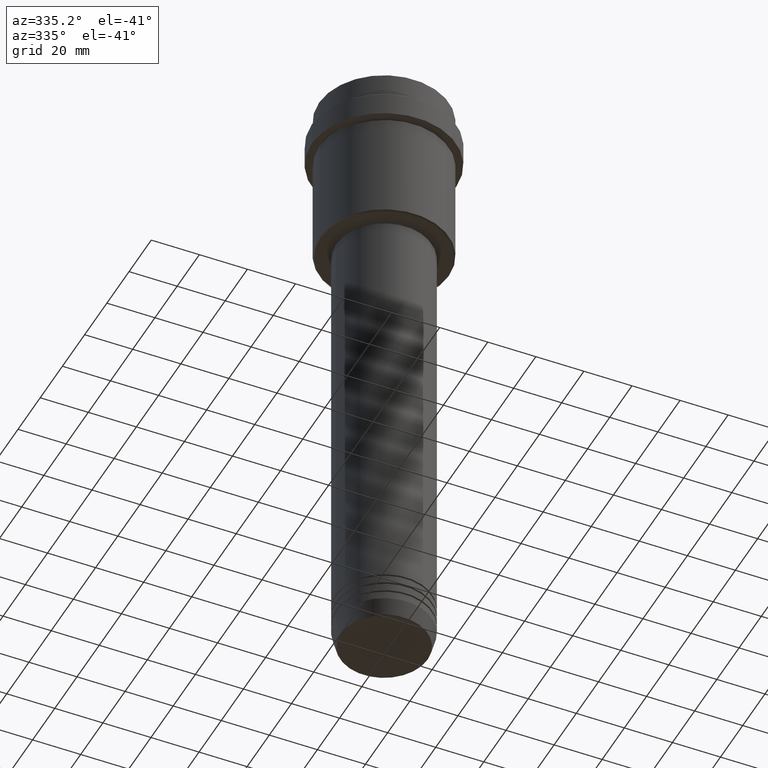
[diagram: clean part render]
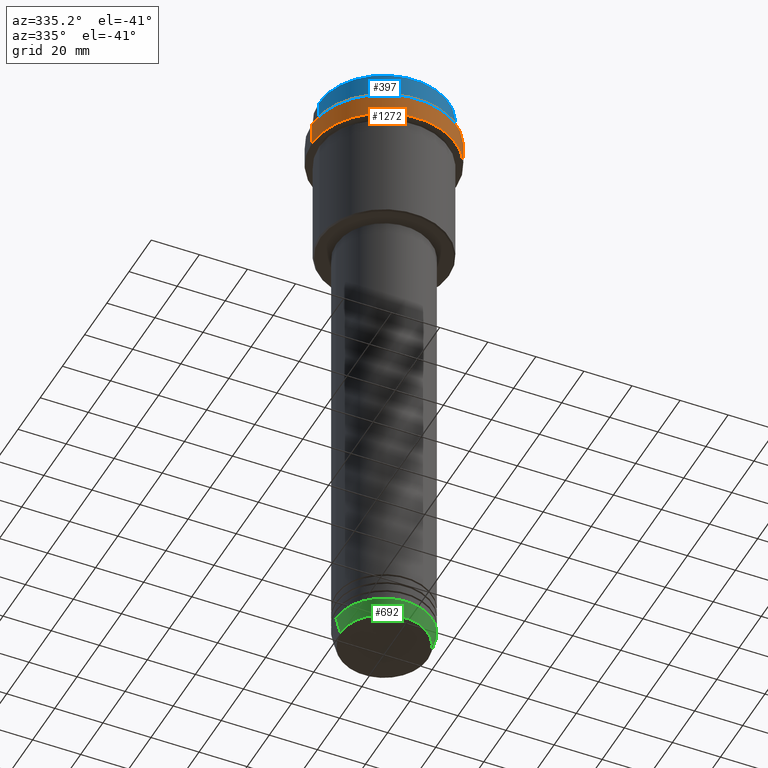
[diagram: same view with three faces highlighted in distinct colors, each labeled with its STEP entity id]
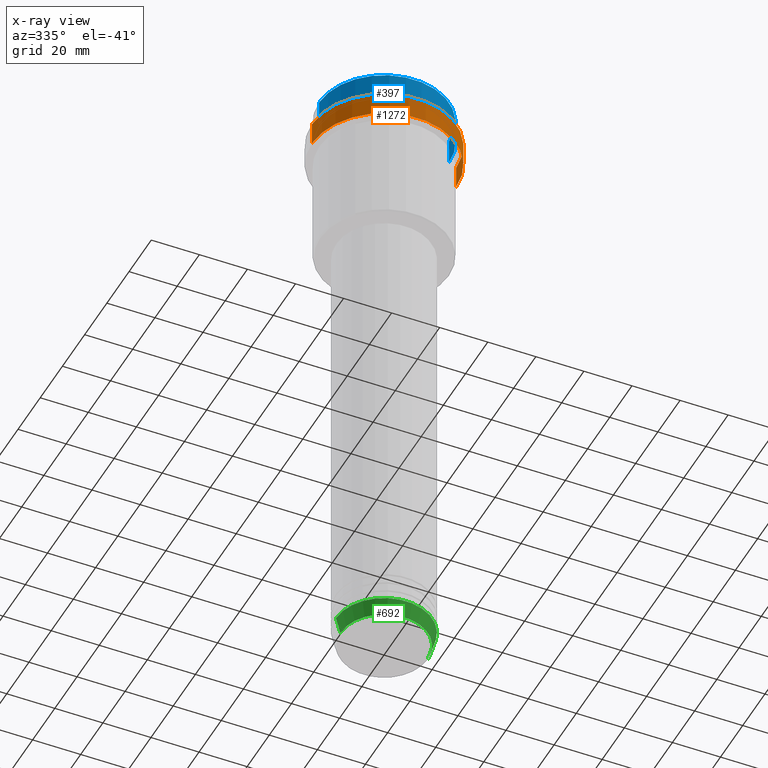
[diagram: x-ray of the same camera — body ghosted, the three highlighted faces saturated]
A machine part, auxiliary view with three faces highlighted in distinct colors.
The next image is the same camera in x-ray (body ghosted, the three faces saturated) — at least one of them is partly hidden behind the body in this view.
Their STEP definitions:

[orange] entity #1272 — the highlighted cylindrical surface (partial cylindrical patch) has radius 30 mm, axis along (-0, -0, 1).
#24 = EDGE_CURVE ( 'NONE', #1242, #1064, #1393, .T. ) ;
#74 = CIRCLE ( 'NONE', #249, 29.99999999999999645 ) ;
#91 = ORIENTED_EDGE ( 'NONE', *, *, #470, .T. ) ;
#108 = CARTESIAN_POINT ( 'NONE',  ( 29.99999999999999645, 0.000000000000000000, -22.00000000000000355 ) ) ;
#210 = AXIS2_PLACEMENT_3D ( 'NONE', #332, #1223, #217 ) ;
#217 = DIRECTION ( 'NONE',  ( 1.000000000000000000, 0.000000000000000000, 0.000000000000000000 ) ) ;
#228 = EDGE_CURVE ( 'NONE', #1242, #1080, #74, .T. ) ;
#249 = AXIS2_PLACEMENT_3D ( 'NONE', #1320, #423, #322 ) ;
#276 = CARTESIAN_POINT ( 'NONE',  ( -30.00000000000000000, 3.673940397442059178E-15, 0.000000000000000000 ) ) ;
#322 = DIRECTION ( 'NONE',  ( 1.000000000000000000, 0.000000000000000000, 0.000000000000000000 ) ) ;
#326 = CYLINDRICAL_SURFACE ( 'NONE', #210, 30.00000000000000000 ) ;
#332 = CARTESIAN_POINT ( 'NONE',  ( 0.000000000000000000, 0.000000000000000000, 0.000000000000000000 ) ) ;
#359 = AXIS2_PLACEMENT_3D ( 'NONE', #590, #933, #853 ) ;
#407 = DIRECTION ( 'NONE',  ( -0.000000000000000000, -0.000000000000000000, 1.000000000000000000 ) ) ;
#409 = VECTOR ( 'NONE', #407, 1000.000000000000000 ) ;
#423 = DIRECTION ( 'NONE',  ( -0.000000000000000000, -0.000000000000000000, 1.000000000000000000 ) ) ;
#470 = EDGE_CURVE ( 'NONE', #1373, #1064, #654, .T. ) ;
#590 = CARTESIAN_POINT ( 'NONE',  ( 0.000000000000000000, 0.000000000000000000, -12.50000000000000888 ) ) ;
#633 = LINE ( 'NONE', #961, #409 ) ;
#654 = CIRCLE ( 'NONE', #359, 30.00000000000000000 ) ;
#853 = DIRECTION ( 'NONE',  ( 1.000000000000000000, 0.000000000000000000, 0.000000000000000000 ) ) ;
#891 = FACE_OUTER_BOUND ( 'NONE', #1163, .T. ) ;
#933 = DIRECTION ( 'NONE',  ( 0.000000000000000000, 0.000000000000000000, -1.000000000000000000 ) ) ;
#939 = ORIENTED_EDGE ( 'NONE', *, *, #228, .T. ) ;
#961 = CARTESIAN_POINT ( 'NONE',  ( 30.00000000000000000, 0.000000000000000000, 0.000000000000000000 ) ) ;
#973 = ORIENTED_EDGE ( 'NONE', *, *, #24, .F. ) ;
#975 = CARTESIAN_POINT ( 'NONE',  ( -29.99999999999999645, 3.673940397442058389E-15, -22.00000000000000355 ) ) ;
#982 = EDGE_CURVE ( 'NONE', #1080, #1373, #633, .T. ) ;
#993 = VECTOR ( 'NONE', #1283, 1000.000000000000000 ) ;
#1032 = CARTESIAN_POINT ( 'NONE',  ( 30.00000000000000000, 0.000000000000000000, -12.50000000000000888 ) ) ;
#1064 = VERTEX_POINT ( 'NONE', #1227 ) ;
#1080 = VERTEX_POINT ( 'NONE', #108 ) ;
#1163 = EDGE_LOOP ( 'NONE', ( #973, #939, #1349, #91 ) ) ;
#1223 = DIRECTION ( 'NONE',  ( -0.000000000000000000, -0.000000000000000000, 1.000000000000000000 ) ) ;
#1227 = CARTESIAN_POINT ( 'NONE',  ( -30.00000000000000000, 3.673940397442059178E-15, -12.50000000000000888 ) ) ;
#1242 = VERTEX_POINT ( 'NONE', #975 ) ;
#1272 = ADVANCED_FACE ( 'NONE', ( #891 ), #326, .T. ) ;
#1283 = DIRECTION ( 'NONE',  ( -0.000000000000000000, -0.000000000000000000, 1.000000000000000000 ) ) ;
#1320 = CARTESIAN_POINT ( 'NONE',  ( 0.000000000000000000, 0.000000000000000000, -22.00000000000000355 ) ) ;
#1349 = ORIENTED_EDGE ( 'NONE', *, *, #982, .T. ) ;
#1373 = VERTEX_POINT ( 'NONE', #1032 ) ;
#1393 = LINE ( 'NONE', #276, #993 ) ;

[blue] entity #397 — the highlighted cylindrical surface (partial cylindrical patch) has radius 27 mm, axis along (-0, -0, 1).
#22 = CARTESIAN_POINT ( 'NONE',  ( 0.000000000000000000, 0.000000000000000000, 0.000000000000000000 ) ) ;
#92 = CARTESIAN_POINT ( 'NONE',  ( -26.99999999999999645, 3.306546357697853339E-15, -0.5000000000000038858 ) ) ;
#225 = VERTEX_POINT ( 'NONE', #682 ) ;
#301 = DIRECTION ( 'NONE',  ( 0.000000000000000000, 0.000000000000000000, -1.000000000000000000 ) ) ;
#324 = ORIENTED_EDGE ( 'NONE', *, *, #838, .T. ) ;
#337 = AXIS2_PLACEMENT_3D ( 'NONE', #22, #1344, #907 ) ;
#372 = DIRECTION ( 'NONE',  ( 1.000000000000000000, 0.000000000000000000, 0.000000000000000000 ) ) ;
#397 = ADVANCED_FACE ( 'NONE', ( #691 ), #909, .T. ) ;
#408 = AXIS2_PLACEMENT_3D ( 'NONE', #486, #1360, #372 ) ;
#436 = CIRCLE ( 'NONE', #922, 26.99999999999999645 ) ;
#486 = CARTESIAN_POINT ( 'NONE',  ( 0.000000000000000000, 0.000000000000000000, -11.00000000000000178 ) ) ;
#535 = CARTESIAN_POINT ( 'NONE',  ( 26.99999999999999645, 0.000000000000000000, 0.000000000000000000 ) ) ;
#587 = VERTEX_POINT ( 'NONE', #1040 ) ;
#682 = CARTESIAN_POINT ( 'NONE',  ( 26.99999999999999645, 0.000000000000000000, -11.00000000000000178 ) ) ;
#686 = EDGE_CURVE ( 'NONE', #587, #999, #995, .T. ) ;
#691 = FACE_OUTER_BOUND ( 'NONE', #794, .T. ) ;
#754 = DIRECTION ( 'NONE',  ( 1.000000000000000000, 0.000000000000000000, 0.000000000000000000 ) ) ;
#792 = ORIENTED_EDGE ( 'NONE', *, *, #1241, .T. ) ;
#794 = EDGE_LOOP ( 'NONE', ( #1252, #324, #792, #1204 ) ) ;
#838 = EDGE_CURVE ( 'NONE', #587, #225, #1244, .T. ) ;
#860 = CARTESIAN_POINT ( 'NONE',  ( 0.000000000000000000, 0.000000000000000000, -0.5000000000000038858 ) ) ;
#872 = VERTEX_POINT ( 'NONE', #1382 ) ;
#907 = DIRECTION ( 'NONE',  ( 1.000000000000000000, 0.000000000000000000, 0.000000000000000000 ) ) ;
#909 = CYLINDRICAL_SURFACE ( 'NONE', #337, 26.99999999999999645 ) ;
#922 = AXIS2_PLACEMENT_3D ( 'NONE', #860, #301, #754 ) ;
#980 = DIRECTION ( 'NONE',  ( -0.000000000000000000, -0.000000000000000000, 1.000000000000000000 ) ) ;
#985 = EDGE_CURVE ( 'NONE', #872, #999, #436, .T. ) ;
#995 = LINE ( 'NONE', #1298, #1333 ) ;
#999 = VERTEX_POINT ( 'NONE', #92 ) ;
#1040 = CARTESIAN_POINT ( 'NONE',  ( -26.99999999999999645, 3.306546357697853339E-15, -11.00000000000000178 ) ) ;
#1074 = LINE ( 'NONE', #535, #1112 ) ;
#1112 = VECTOR ( 'NONE', #980, 1000.000000000000000 ) ;
#1204 = ORIENTED_EDGE ( 'NONE', *, *, #985, .T. ) ;
#1241 = EDGE_CURVE ( 'NONE', #225, #872, #1074, .T. ) ;
#1244 = CIRCLE ( 'NONE', #408, 26.99999999999999645 ) ;
#1252 = ORIENTED_EDGE ( 'NONE', *, *, #686, .F. ) ;
#1298 = CARTESIAN_POINT ( 'NONE',  ( -26.99999999999999645, 3.306546357697853339E-15, 0.000000000000000000 ) ) ;
#1312 = DIRECTION ( 'NONE',  ( -0.000000000000000000, -0.000000000000000000, 1.000000000000000000 ) ) ;
#1333 = VECTOR ( 'NONE', #1312, 1000.000000000000000 ) ;
#1344 = DIRECTION ( 'NONE',  ( -0.000000000000000000, -0.000000000000000000, 1.000000000000000000 ) ) ;
#1360 = DIRECTION ( 'NONE',  ( -0.000000000000000000, -0.000000000000000000, 1.000000000000000000 ) ) ;
#1382 = CARTESIAN_POINT ( 'NONE',  ( 26.99999999999999645, 0.000000000000000000, -0.5000000000000038858 ) ) ;

[green] entity #692 — the highlighted conical surface has half-angle 15 deg.
#6 = CARTESIAN_POINT ( 'NONE',  ( 0.000000000000000000, 0.000000000000000000, -256.0000000000000000 ) ) ;
#27 = CARTESIAN_POINT ( 'NONE',  ( -20.00000000000000000, 2.449293598294706513E-15, -256.0000000000000000 ) ) ;
#62 = CARTESIAN_POINT ( 'NONE',  ( 0.000000000000000000, 0.000000000000000000, -262.6294095225512706 ) ) ;
#95 = DIRECTION ( 'NONE',  ( 1.000000000000000000, 0.000000000000000000, 0.000000000000000000 ) ) ;
#111 = DIRECTION ( 'NONE',  ( -0.000000000000000000, -0.000000000000000000, 1.000000000000000000 ) ) ;
#121 = CIRCLE ( 'NONE', #205, 18.22365507213718772 ) ;
#131 = CARTESIAN_POINT ( 'NONE',  ( 20.00000000000000000, 0.000000000000000000, -256.0000000000000000 ) ) ;
#181 = AXIS2_PLACEMENT_3D ( 'NONE', #435, #1066, #95 ) ;
#205 = AXIS2_PLACEMENT_3D ( 'NONE', #62, #494, #1057 ) ;
#246 = CIRCLE ( 'NONE', #181, 20.00000000000000000 ) ;
#255 = ORIENTED_EDGE ( 'NONE', *, *, #858, .T. ) ;
#307 = VERTEX_POINT ( 'NONE', #548 ) ;
#363 = VERTEX_POINT ( 'NONE', #131 ) ;
#379 = EDGE_CURVE ( 'NONE', #743, #307, #580, .T. ) ;
#435 = CARTESIAN_POINT ( 'NONE',  ( 0.000000000000000000, 0.000000000000000000, -256.0000000000000000 ) ) ;
#466 = DIRECTION ( 'NONE',  ( -0.2588190451025213501, 3.169619151431772337E-17, 0.9659258262890680902 ) ) ;
#494 = DIRECTION ( 'NONE',  ( -0.000000000000000000, -0.000000000000000000, 1.000000000000000000 ) ) ;
#548 = CARTESIAN_POINT ( 'NONE',  ( -20.00000000000000000, 2.449293598294706513E-15, -256.0000000000000000 ) ) ;
#580 = LINE ( 'NONE', #27, #1378 ) ;
#643 = EDGE_CURVE ( 'NONE', #307, #363, #246, .T. ) ;
#659 = ORIENTED_EDGE ( 'NONE', *, *, #379, .F. ) ;
#692 = ADVANCED_FACE ( 'NONE', ( #1319 ), #1314, .T. ) ;
#728 = DIRECTION ( 'NONE',  ( 0.2588190451025213501, 0.000000000000000000, 0.9659258262890680902 ) ) ;
#743 = VERTEX_POINT ( 'NONE', #1134 ) ;
#749 = ORIENTED_EDGE ( 'NONE', *, *, #911, .T. ) ;
#843 = CARTESIAN_POINT ( 'NONE',  ( 20.00000000000000000, 0.000000000000000000, -256.0000000000000000 ) ) ;
#858 = EDGE_CURVE ( 'NONE', #743, #1278, #121, .T. ) ;
#888 = ORIENTED_EDGE ( 'NONE', *, *, #643, .F. ) ;
#898 = CARTESIAN_POINT ( 'NONE',  ( 18.22365507213718772, 0.000000000000000000, -262.6294095225512706 ) ) ;
#911 = EDGE_CURVE ( 'NONE', #1278, #363, #1193, .T. ) ;
#917 = EDGE_LOOP ( 'NONE', ( #659, #255, #749, #888 ) ) ;
#979 = DIRECTION ( 'NONE',  ( 1.000000000000000000, 0.000000000000000000, 0.000000000000000000 ) ) ;
#1057 = DIRECTION ( 'NONE',  ( 1.000000000000000000, 0.000000000000000000, 0.000000000000000000 ) ) ;
#1066 = DIRECTION ( 'NONE',  ( -0.000000000000000000, -0.000000000000000000, 1.000000000000000000 ) ) ;
#1134 = CARTESIAN_POINT ( 'NONE',  ( -18.22365507213718772, 2.340523841790264718E-15, -262.6294095225512706 ) ) ;
#1147 = AXIS2_PLACEMENT_3D ( 'NONE', #6, #111, #979 ) ;
#1193 = LINE ( 'NONE', #843, #1290 ) ;
#1278 = VERTEX_POINT ( 'NONE', #898 ) ;
#1290 = VECTOR ( 'NONE', #728, 1000.000000000000000 ) ;
#1314 = CONICAL_SURFACE ( 'NONE', #1147, 20.00000000000000000, 0.2617993877991500740 ) ;
#1319 = FACE_OUTER_BOUND ( 'NONE', #917, .T. ) ;
#1378 = VECTOR ( 'NONE', #466, 1000.000000000000000 ) ;